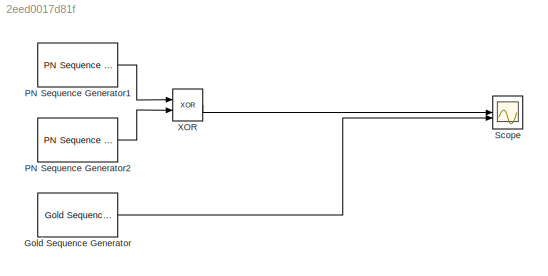
MODEL slx_2eed0017d81f
KIND model
CONFIG AbsTol = auto
CONFIG EnableMultiTasking = off
CONFIG FixedStep = auto
CONFIG MaxStep = auto
CONFIG MinStep = auto
CONFIG RelTol = 1e-3
CONFIG SampleTimeConstraint = Unconstrained
CONFIG SolverName = FixedStepDiscrete
CONFIG StartTime = 0.0
CONFIG StopTime = 10.0
BLOCK [Reference] Gold Sequence Generator  REF=commseqgen3/Gold Sequence
Generator
  SourceBlock = commseqgen3/Gold Sequence\nGenerator
  SourceType = Gold Sequence Generator
BLOCK [Reference] PN Sequence Generator1  REF=commseqgen3/PN Sequence
Generator
  SourceBlock = commseqgen3/PN Sequence\nGenerator
  SourceType = PN Sequence Generator
BLOCK [Reference] PN Sequence Generator2  REF=commseqgen3/PN Sequence
Generator
  SourceBlock = commseqgen3/PN Sequence\nGenerator
  SourceType = PN Sequence Generator
BLOCK [Scope] Scope
  Floating = off
  NumInputPorts = 2
  ScopeSpecificationString = Simulink.scopes.TimeScopeBlockCfg('CurrentConfiguration', extmgr.ConfigurationSet(extmgr.Configuration('Core','General UI',true),extmgr.Configuration('Core','Source UI',true),extmgr.Configuration('Sources','WiredSimulink',true),extmgr.Configuration('Visuals','Time Domain',true,'SerializedDisplays',{struct('MinYLimReal','-0.125','MaxYLimReal','1.125','YLabelReal','','MinYLimMag','0.00000','MaxYLimM...<+1379ch>
BLOCK [Logic] XOR
  AllPortsSameDT = off
  IconShape = distinctive
  Operator = XOR
  OutDataTypeStr = float('double')
LINE Gold Sequence Generator:1 -> Scope:2
LINE PN Sequence Generator1:1 -> XOR:1
LINE PN Sequence Generator2:1 -> XOR:2
LINE XOR:1 -> Scope:1
